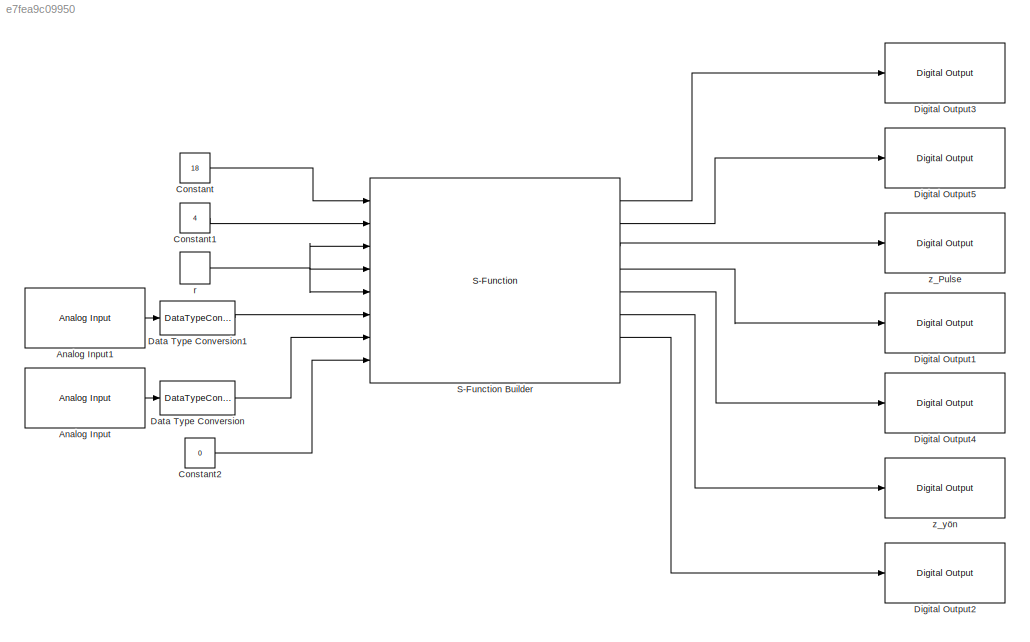
MODEL slx_e7fea9c09950
KIND model
CONFIG AbsTol = auto
CONFIG FixedStep = 0.001
CONFIG MaxStep = auto
CONFIG MinStep = auto
CONFIG RelTol = 1e-3
CONFIG SampleTimeConstraint = Unconstrained
CONFIG Solver = FixedStepAuto
CONFIG SolverMode = Auto
CONFIG SolverName = FixedStepAuto
CONFIG StartTime = 0.0
CONFIG StopTime = inf
BLOCK [Reference] Analog Input  REF=arduinolib/Analog Input
  Ports = [0, 1]
  SourceBlock = arduinolib/Analog Input
  SourceType = Arduino Analog Input
BLOCK [Reference] Analog Input1  REF=arduinolib/Analog Input
  Ports = [0, 1]
  SourceBlock = arduinolib/Analog Input
  SourceType = Arduino Analog Input
BLOCK [Constant] Constant
  Value = 18
BLOCK [Constant] Constant1
  Value = 4
BLOCK [Constant] Constant2
  Value = 0
BLOCK [DataTypeConversion] Data Type Conversion
  OutDataTypeStr = double
  RndMeth = Floor
  SaturateOnIntegerOverflow = off
BLOCK [DataTypeConversion] Data Type Conversion1
  OutDataTypeStr = double
  RndMeth = Floor
  SaturateOnIntegerOverflow = off
BLOCK [Reference] Digital Output1  REF=arduinolib/Digital Output
  Ports = [1]
  SourceBlock = arduinolib/Digital Output
  SourceType = Arduino Digital Output
BLOCK [Reference] Digital Output2  REF=arduinolib/Digital Output
  Ports = [1]
  SourceBlock = arduinolib/Digital Output
  SourceType = Arduino Digital Output
BLOCK [Reference] Digital Output3  REF=arduinolib/Digital Output
  Ports = [1]
  SourceBlock = arduinolib/Digital Output
  SourceType = Arduino Digital Output
BLOCK [Reference] Digital Output4  REF=arduinolib/Digital Output
  Ports = [1]
  SourceBlock = arduinolib/Digital Output
  SourceType = Arduino Digital Output
BLOCK [Reference] Digital Output5  REF=arduinolib/Digital Output
  Ports = [1]
  SourceBlock = arduinolib/Digital Output
  SourceType = Arduino Digital Output
BLOCK [S-Function] S-Function Builder
  CopyFcn = set_param(gcbh,'LinkStatus','none')
  EnableBusSupport = off
  FunctionName = StepMotor
  InitFcn = try, set_param(gcb,'FunctionName','StepMotor'), end
  OpenFcn = sfunctionwizard(gcbh)
  Ports = [8, 8]
  PreSaveFcn = try, set_param(gcb,'FunctionName','StepMotor'), end
  SFunctionDeploymentMode = off
  SFunctionModules = StepMotor_wrapper
BLOCK [DiscretePulseGenerator] r
  Amplitude = 5
  Ports = [0, 1]
  SampleTime = 0.001
BLOCK [Reference] z_Pulse   REF=arduinolib/Digital Output
  Ports = [1]
  SourceBlock = arduinolib/Digital Output
  SourceType = Arduino Digital Output
BLOCK [Reference] z_yön   REF=arduinolib/Digital Output
  Ports = [1]
  SourceBlock = arduinolib/Digital Output
  SourceType = Arduino Digital Output
LINE Analog Input1:1 -> Data Type Conversion1:1
LINE Analog Input:1 -> Data Type Conversion:1
LINE Constant1:1 -> S-Function Builder:2
LINE Constant2:1 -> S-Function Builder:8
LINE Constant:1 -> S-Function Builder:1
LINE Data Type Conversion1:1 -> S-Function Builder:6
LINE Data Type Conversion:1 -> S-Function Builder:7
LINE S-Function Builder:1 -> Digital Output3:1
LINE S-Function Builder:2 -> Digital Output5:1
LINE S-Function Builder:3 -> z_Pulse :1
LINE S-Function Builder:4 -> Digital Output1:1
LINE S-Function Builder:5 -> Digital Output4:1
LINE S-Function Builder:6 -> z_yön :1
LINE S-Function Builder:7 -> Digital Output2:1
NET r:1 -> S-Function Builder:3, S-Function Builder:4, S-Function Builder:5
note: NET lines group one-source signal fan-out (src -> all destinations, sorted); 1:1 wires keep LINE
